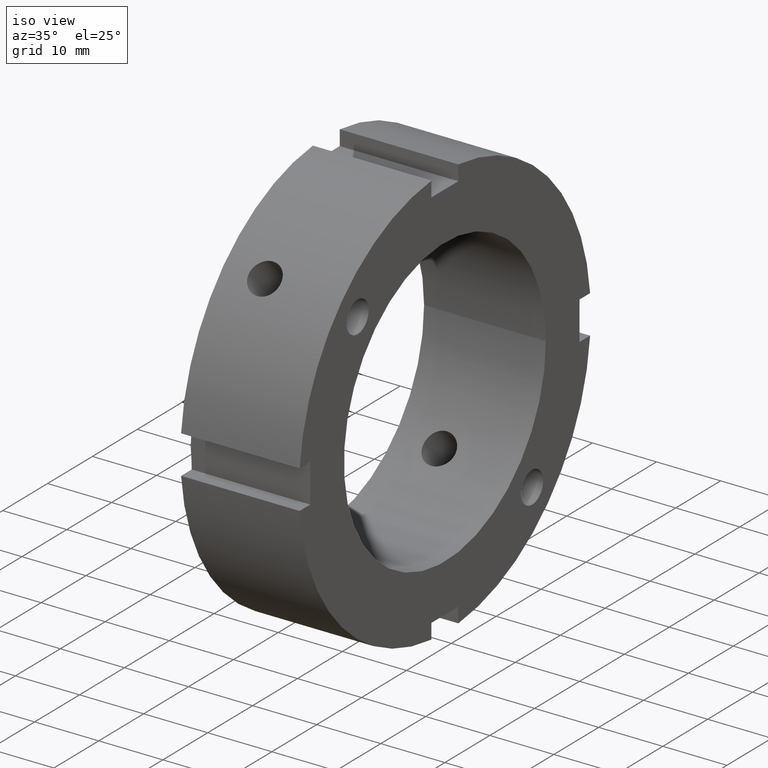
[diagram: clean part render]
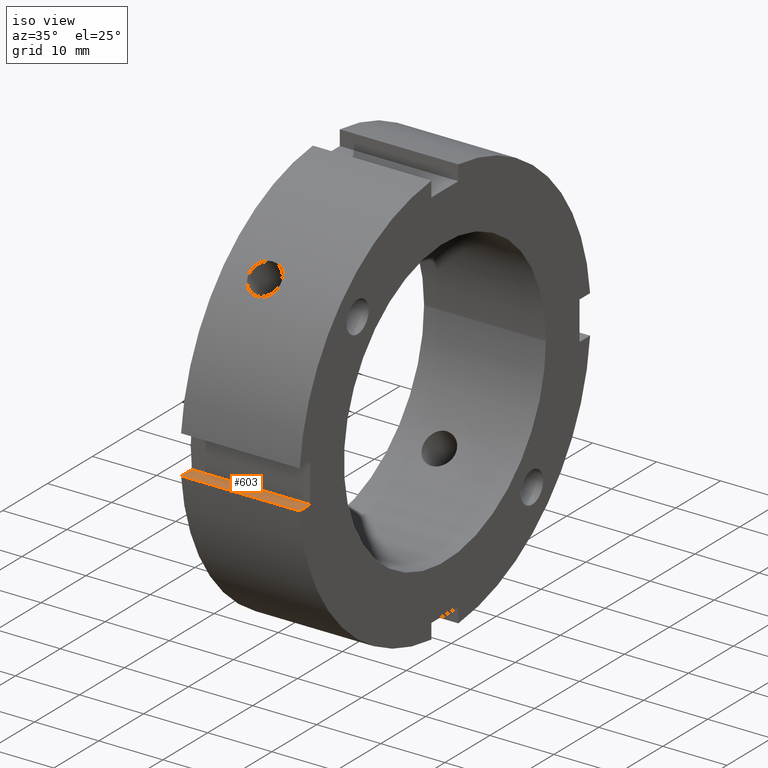
[diagram: same view with one face highlighted and labeled with its STEP entity id]
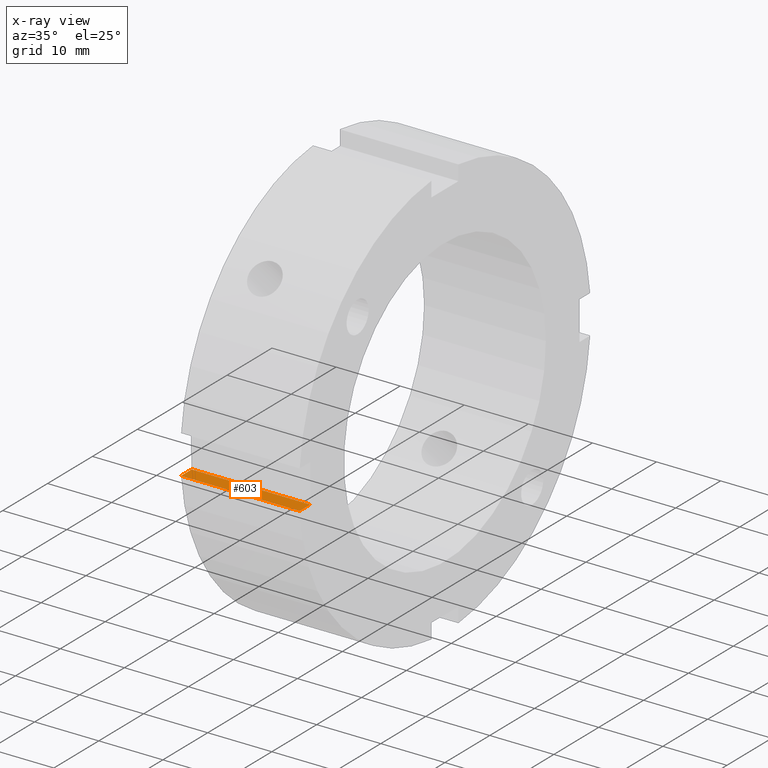
[diagram: x-ray of the same camera — body ghosted, the highlighted face saturated]
A machine part, iso view. The second image highlights one B-rep face of the part: STEP entity #603.
The next image is the same camera in x-ray: the body ghosted, the highlighted face saturated — about 0% of this face is hidden behind the body in this view.
In plain terms, the highlighted planar face has unit normal (0, 0, -1).
Its self-contained STEP definition (entity closure, byte-faithful):
#564=CARTESIAN_POINT('',(18.999999999999993,-32.500000000000000,-2.999999999999994));
#565=DIRECTION('',(0.0,0.0,-1.0));
#566=DIRECTION('',(1.0,0.0,0.0));
#567=AXIS2_PLACEMENT_3D('',#564,#565,#566);
#568=PLANE('',#567);
#569=CARTESIAN_POINT('',(0.499999999999994,-32.361242250568807,-2.999999999999994));
#570=VERTEX_POINT('',#569);
#571=CARTESIAN_POINT('',(0.499999999999994,-30.0,-2.999999999999996));
#572=VERTEX_POINT('',#571);
#573=CARTESIAN_POINT('',(0.499999999999993,-32.361242250568807,-2.999999999999994));
#574=DIRECTION('',(0.0,1.0,0.0));
#575=VECTOR('',#574,2.361242250568804);
#576=LINE('',#573,#575);
#577=EDGE_CURVE('',#570,#572,#576,.T.);
#578=ORIENTED_EDGE('',*,*,#577,.F.);
#579=CARTESIAN_POINT('',(18.999999999999993,-32.361242250568814,-2.999999999999994));
#580=VERTEX_POINT('',#579);
#581=CARTESIAN_POINT('',(18.999999999999993,-32.361242250568814,-2.999999999999994));
#582=DIRECTION('',(-1.0,0.0,0.0));
#583=VECTOR('',#582,18.500000000000000);
#584=LINE('',#581,#583);
#585=EDGE_CURVE('',#580,#570,#584,.T.);
#586=ORIENTED_EDGE('',*,*,#585,.F.);
#587=CARTESIAN_POINT('',(18.999999999999993,-30.0,-2.999999999999996));
#588=VERTEX_POINT('',#587);
#589=CARTESIAN_POINT('',(18.999999999999993,-30.0,-2.999999999999996));
#590=DIRECTION('',(0.0,-1.0,0.0));
#591=VECTOR('',#590,2.361242250568814);
#592=LINE('',#589,#591);
#593=EDGE_CURVE('',#588,#580,#592,.T.);
#594=ORIENTED_EDGE('',*,*,#593,.F.);
#595=CARTESIAN_POINT('',(18.999999999999993,-30.0,-2.999999999999996));
#596=DIRECTION('',(-1.0,0.0,0.0));
#597=VECTOR('',#596,18.500000000000000);
#598=LINE('',#595,#597);
#599=EDGE_CURVE('',#588,#572,#598,.T.);
#600=ORIENTED_EDGE('',*,*,#599,.T.);
#601=EDGE_LOOP('',(#578,#586,#594,#600));
#602=FACE_OUTER_BOUND('',#601,.T.);
#603=ADVANCED_FACE('',(#602),#568,.F.);